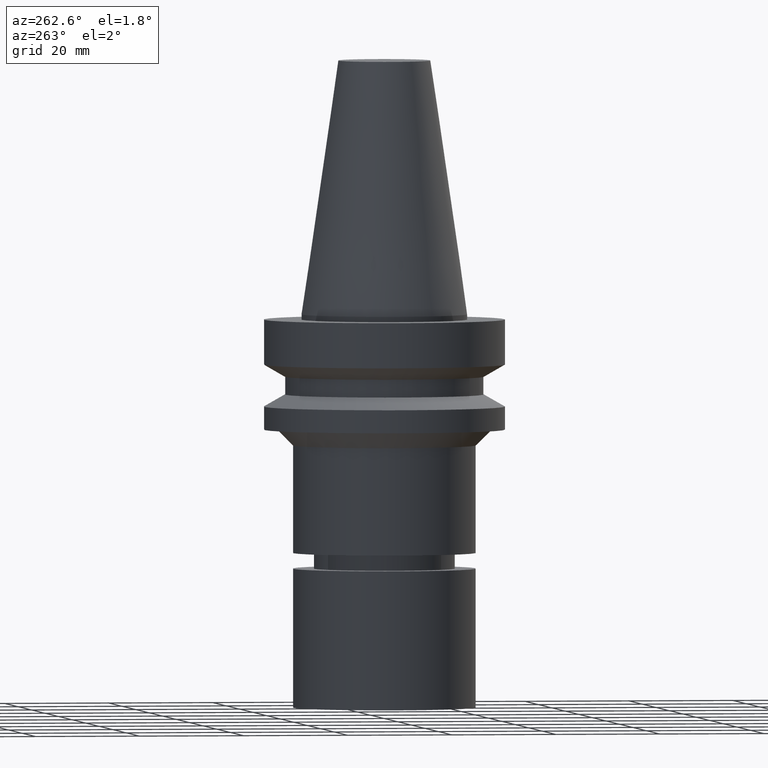
[diagram: clean part render]
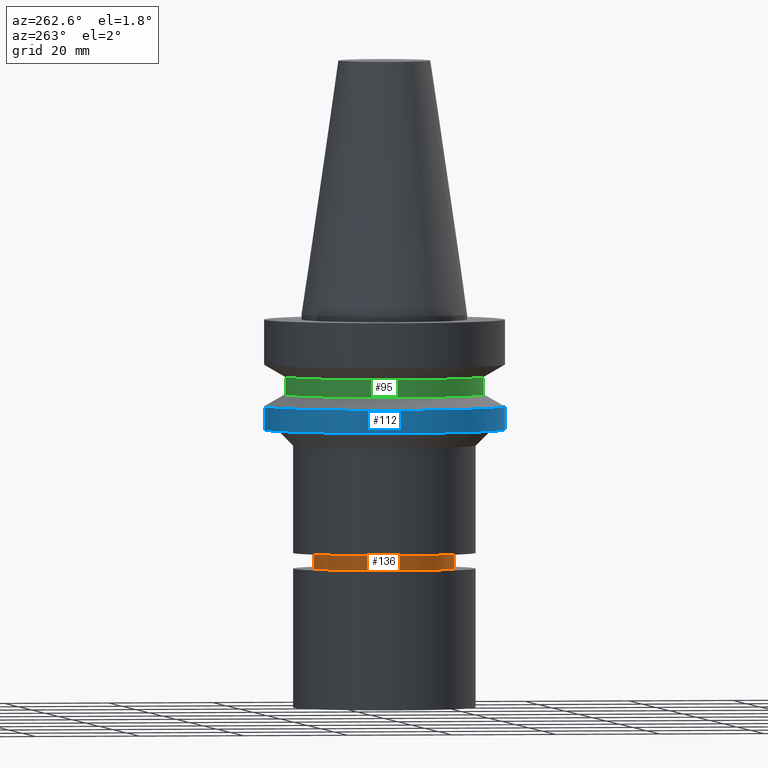
[diagram: same view with three faces highlighted in distinct colors, each labeled with its STEP entity id]
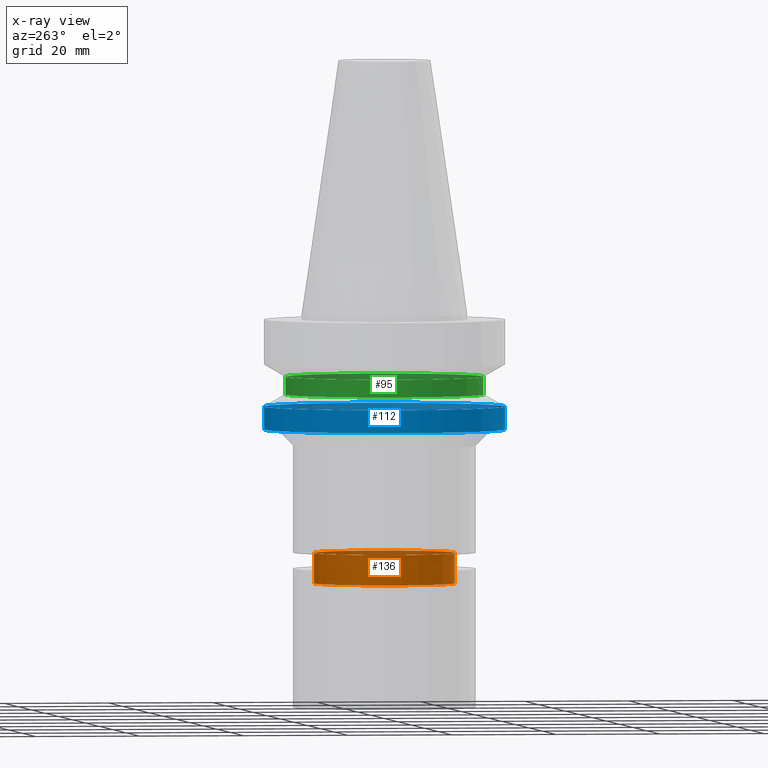
[diagram: x-ray of the same camera — body ghosted, the three highlighted faces saturated]
A machine part, auxiliary view with three faces highlighted in distinct colors.
The next image is the same camera in x-ray (body ghosted, the three faces saturated) — at least one of them is partly hidden behind the body in this view.
Their STEP definitions:

[orange] entity #136 — the highlighted cylindrical surface (bore or boss wall) has radius 13.5 mm, axis along (0, 0, -1).
#82=EDGE_CURVE('Unnamed[1]',#212,#212,#213,.T.);
#97=EDGE_CURVE('Unnamed[1]',#235,#235,#236,.T.);
#136=ADVANCED_FACE('Unnamed[1]',(#297,#298),#299,.T.);
#212=VERTEX_POINT('',#391);
#213=CIRCLE('',#392,13.4999999999908);
#235=VERTEX_POINT('',#420);
#236=CIRCLE('',#421,13.5000000000005);
#297=FACE_BOUND('',#497,.T.);
#298=FACE_BOUND('',#498,.T.);
#299=CYLINDRICAL_SURFACE('',#499,13.4999999999956);
#391=CARTESIAN_POINT('',(2.7860714680602E-015,13.4999999999908,-45.4999999999996));
#392=AXIS2_PLACEMENT_3D('',#592,#593,#594);
#420=CARTESIAN_POINT('',(3.14258604356095E-015,13.5000000000005,-51.3223248654052));
#421=AXIS2_PLACEMENT_3D('',#618,#619,#620);
#497=EDGE_LOOP('',(#688));
#498=EDGE_LOOP('',(#689));
#499=AXIS2_PLACEMENT_3D('',#690,#691,#692);
#592=CARTESIAN_POINT('',(2.7860714680602E-015,5.57214293612041E-015,-45.4999999999996));
#593=DIRECTION('',(6.12323399573677E-017,1.22464679914735E-016,-1.0));
#594=DIRECTION('',(-1.23259516440783E-032,1.0,1.22464679914735E-016));
#618=CARTESIAN_POINT('',(3.14258604356095E-015,6.28517208712191E-015,-51.3223248654052));
#619=DIRECTION('',(6.12323399573677E-017,1.22464679914735E-016,-1.0));
#620=DIRECTION('',(-1.23259516440783E-032,1.0,1.22464679914735E-016));
#688=ORIENTED_EDGE('',*,*,#97,.F.);
#689=ORIENTED_EDGE('',*,*,#82,.T.);
#690=CARTESIAN_POINT('',(2.96432875581058E-015,5.92865751162116E-015,-48.4111624327024));
#691=DIRECTION('',(6.12323399573677E-017,1.22464679914735E-016,-1.0));
#692=DIRECTION('',(-1.23259516440783E-032,1.0,1.22464679914735E-016));

[blue] entity #112 — the highlighted cylindrical surface (bore or boss wall) has radius 23 mm, axis along (0, 0, -1).
#77=EDGE_CURVE('Unnamed[1]',#204,#204,#205,.T.);
#112=ADVANCED_FACE('Unnamed[1]',(#258,#259),#260,.T.);
#161=EDGE_CURVE('Unnamed[1]',#336,#336,#337,.T.);
#204=VERTEX_POINT('',#381);
#205=CIRCLE('',#382,23.0);
#258=FACE_BOUND('',#449,.T.);
#259=FACE_BOUND('',#450,.T.);
#260=CYLINDRICAL_SURFACE('',#451,23.0);
#336=VERTEX_POINT('',#546);
#337=CIRCLE('',#547,23.0);
#381=CARTESIAN_POINT('',(1.07768918324967E-015,23.0,-17.6));
#382=AXIS2_PLACEMENT_3D('',#583,#584,#585);
#449=EDGE_LOOP('',(#643));
#450=EDGE_LOOP('',(#644));
#451=AXIS2_PLACEMENT_3D('',#645,#646,#647);
#546=CARTESIAN_POINT('',(1.34711147906209E-015,23.0,-22.0));
#547=AXIS2_PLACEMENT_3D('',#733,#734,#735);
#583=CARTESIAN_POINT('',(1.07768918324967E-015,2.15537836649934E-015,-17.6));
#584=DIRECTION('',(6.12323399573677E-017,1.22464679914735E-016,-1.0));
#585=DIRECTION('',(-1.23259516440783E-032,1.0,1.22464679914735E-016));
#643=ORIENTED_EDGE('',*,*,#161,.F.);
#644=ORIENTED_EDGE('',*,*,#77,.T.);
#645=CARTESIAN_POINT('',(1.21240033115588E-015,2.42480066231176E-015,-19.8));
#646=DIRECTION('',(6.12323399573677E-017,1.22464679914735E-016,-1.0));
#647=DIRECTION('',(-1.23259516440783E-032,1.0,1.22464679914735E-016));
#733=CARTESIAN_POINT('',(1.34711147906209E-015,2.69422295812418E-015,-22.0));
#734=DIRECTION('',(6.12323399573677E-017,1.22464679914735E-016,-1.0));
#735=DIRECTION('',(-1.23259516440783E-032,1.0,1.22464679914735E-016));

[green] entity #95 — the highlighted cylindrical surface (bore or boss wall) has radius 19 mm, axis along (0, 0, -1).
#75=EDGE_CURVE('Unnamed[1]',#201,#201,#202,.T.);
#95=ADVANCED_FACE('Unnamed[1]',(#231,#232),#233,.T.);
#180=EDGE_CURVE('Unnamed[1]',#362,#362,#363,.T.);
#201=VERTEX_POINT('',#377);
#202=CIRCLE('',#378,19.0);
#231=FACE_BOUND('',#415,.T.);
#232=FACE_BOUND('',#416,.T.);
#233=CYLINDRICAL_SURFACE('',#417,19.0);
#362=VERTEX_POINT('',#577);
#363=CIRCLE('',#578,19.0);
#377=CARTESIAN_POINT('',(7.29240495619202E-016,19.0,-11.90940108));
#378=AXIS2_PLACEMENT_3D('',#580,#581,#582);
#415=EDGE_LOOP('',(#613));
#416=EDGE_LOOP('',(#614));
#417=AXIS2_PLACEMENT_3D('',#615,#616,#617);
#577=CARTESIAN_POINT('',(9.36279151221199E-016,19.0,-15.29059892));
#578=AXIS2_PLACEMENT_3D('',#758,#759,#760);
#580=CARTESIAN_POINT('',(7.29240495619202E-016,1.4584809912384E-015,-11.90940108));
#581=DIRECTION('',(6.12323399573677E-017,1.22464679914735E-016,-1.0));
#582=DIRECTION('',(-1.23259516440783E-032,1.0,1.22464679914735E-016));
#613=ORIENTED_EDGE('',*,*,#180,.F.);
#614=ORIENTED_EDGE('',*,*,#75,.T.);
#615=CARTESIAN_POINT('',(8.32759823420201E-016,1.6655196468404E-015,-13.6));
#616=DIRECTION('',(6.12323399573677E-017,1.22464679914735E-016,-1.0));
#617=DIRECTION('',(-1.23259516440783E-032,1.0,1.22464679914735E-016));
#758=CARTESIAN_POINT('',(9.36279151221199E-016,1.8725583024424E-015,-15.29059892));
#759=DIRECTION('',(6.12323399573677E-017,1.22464679914735E-016,-1.0));
#760=DIRECTION('',(-1.23259516440783E-032,1.0,1.22464679914735E-016));